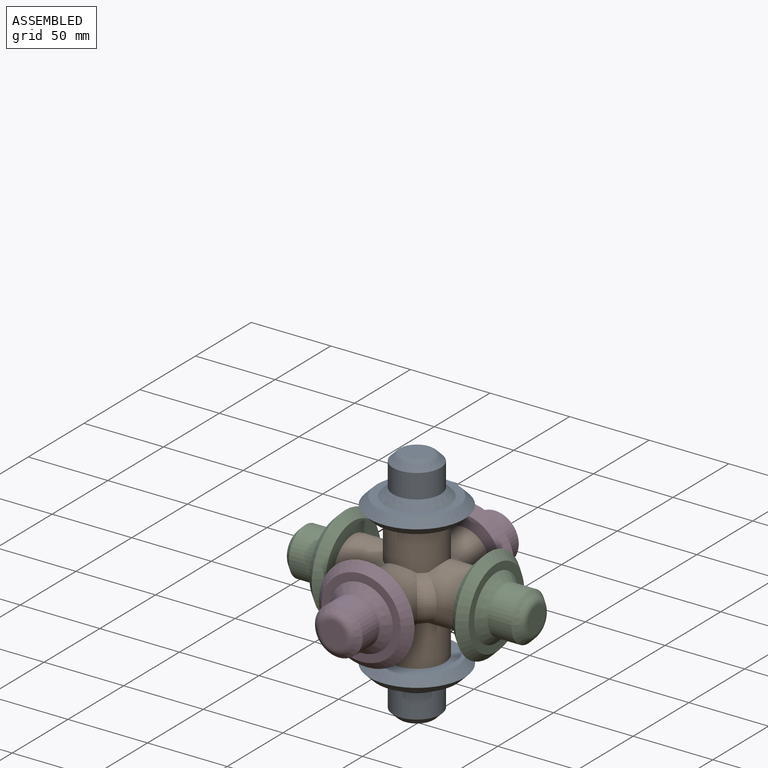
[diagram: assembled view]
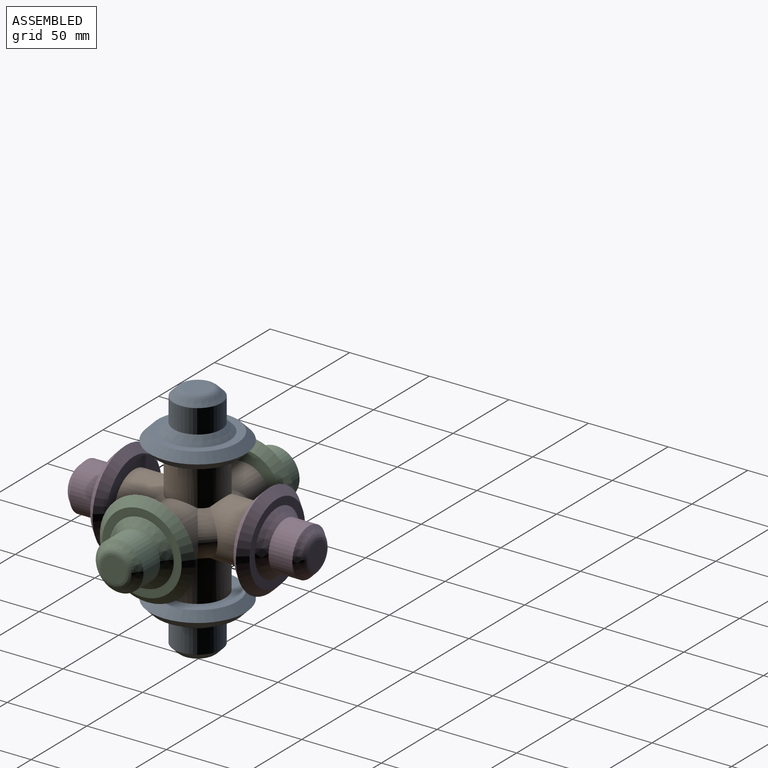
[diagram: assembled view, second angle]
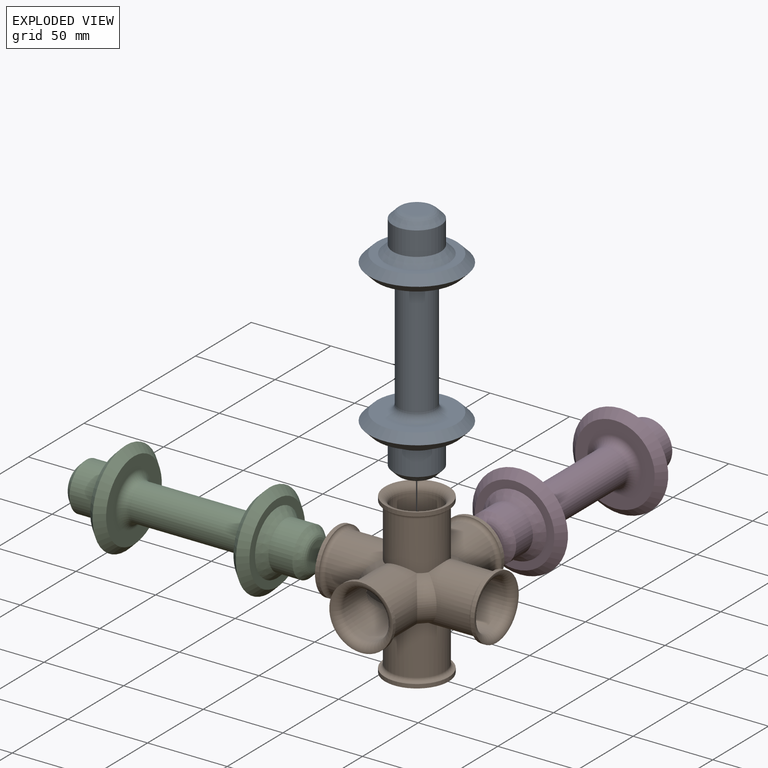
[diagram: exploded view]
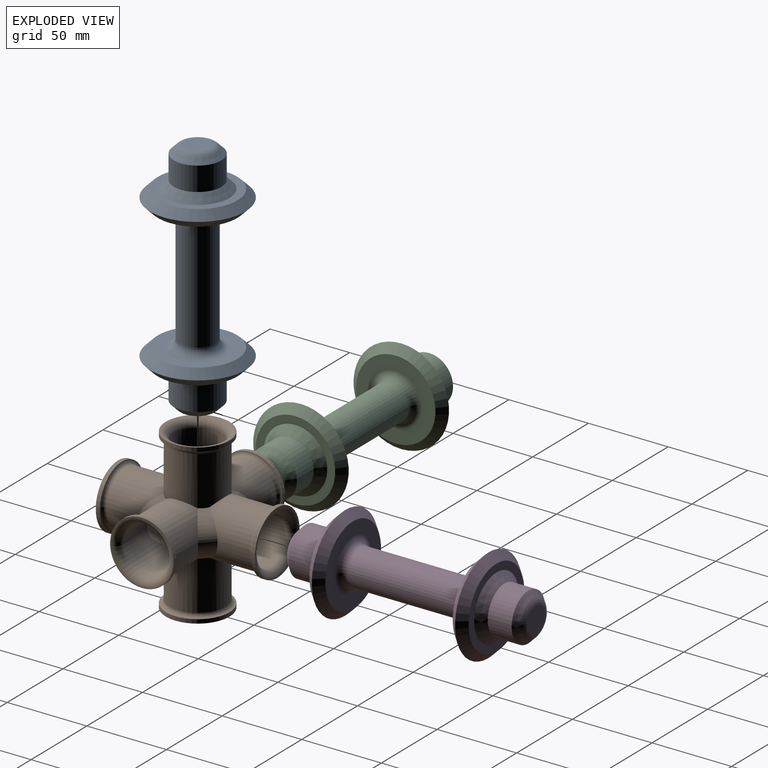
[diagram: exploded view, second angle]
ASSEMBLY  parts=4 mates=2
PART A: 21 faces, bbox 150x60x60 mm
  f0: plane 15.86x15.86mm, normal (1,0,0), area 197.5mm2, adj f20
  f1: cylinder r=15mm len=30mm, axis (1,0,0), area 1413.7mm2, adj f11,f15
  f2: plane 50x50mm, normal (1,0,0), area 706.9mm2, adj f11,f14
  f3: plane 50x50mm, normal (-1,0,0), area 1117.7mm2, adj f4,f13
  f4: torus R=16.41mm, axis (1,0,0), area 652.6mm2, adj f3,f5
  f5: cylinder r=11.41mm len=70mm, axis (1,0,0), area 5017.4mm2, adj f4,f10
  f6: plane 15.86x15.86mm, normal (-1,0,0), area 197.5mm2, adj f19
  f7: cylinder r=15mm len=30mm, axis (-1,0,0), area 1413.7mm2, adj f12,f18
  f8: plane 50x50mm, normal (-1,0,0), area 706.9mm2, adj f12,f17
  f9: plane 50x50mm, normal (1,0,0), area 1117.7mm2, adj f10,f16
  f10: torus R=16.41mm, axis (-1,0,0), area 652.6mm2, adj f5,f9
  f11: cone r=15mm half-angle=45deg, axis (-1,0,0), area 777.5mm2, adj f1,f2
  f12: cone r=20mm half-angle=45deg, axis (1,0,0), area 777.5mm2, adj f7,f8
  f13: cone r=30mm half-angle=45deg, axis (1,0,0), area 1221.8mm2, adj f3,f14
  f14: cone r=25mm half-angle=45deg, axis (-1,0,0), area 1221.8mm2, adj f2,f13
  f15: cone r=10mm half-angle=45deg, axis (-1,0,0), area 415.7mm2, adj f1,f20
  f16: cone r=25mm half-angle=45deg, axis (-1,0,0), area 1221.8mm2, adj f9,f17
  f17: cone r=30mm half-angle=45deg, axis (1,0,0), area 1221.8mm2, adj f8,f16
  f18: cone r=15mm half-angle=45deg, axis (1,0,0), area 415.7mm2, adj f7,f19
  f19: torus R=7.93mm, axis (1,0,0), area 241.6mm2, adj f6,f18
  f20: torus R=7.93mm, axis (-1,0,0), area 241.6mm2, adj f0,f15
PART B: 38 faces, bbox 105x105x105 mm
  f0: cylinder r=15mm len=32.33mm, axis (0,0,1), area 3027.4mm2, adj f2,f3,f4,f5,f6,f7,f8,f9
  f1: cylinder r=15mm len=32.33mm, axis (0,0,1), area 2968.1mm2, adj f2,f3,f4,f5,f6,f7,f8,f9
  f2: cylinder r=15mm len=32.33mm, axis (0,-1,0), area 2593.1mm2, adj f0,f1,f6,f9,f13
  f3: cylinder r=15mm len=32.33mm, axis (0,-1,0), area 2593.1mm2, adj f0,f1,f7,f8,f12
  f4: cylinder r=15mm len=32.33mm, axis (1,0,0), area 2593.1mm2, adj f0,f1,f7,f9,f11
  f5: cylinder r=15mm len=32.33mm, axis (1,0,0), area 2573.4mm2, adj f0,f1,f6,f8,f10
  f6: bspline ~25.34x15.62mm, area 381.8mm2, adj f0,f1,f2,f5
  f7: bspline ~25.34x15.62mm, area 381.8mm2, adj f0,f1,f3,f4
  f8: bspline ~25.34x15.62mm, area 381.8mm2, adj f0,f1,f3,f5
  f9: bspline ~25.34x15.62mm, area 381.8mm2, adj f0,f1,f2,f4
  f10: torus R=20mm, axis (1,0,0), area 829.9mm2, adj f5,f17
  f11: torus R=20mm, axis (1,0,0), area 829.9mm2, adj f4,f16
  f12: torus R=20mm, axis (0,-1,0), area 829.9mm2, adj f3,f19
  f13: torus R=20mm, axis (0,-1,0), area 829.9mm2, adj f2,f20
  f14: torus R=20mm, axis (0,0,1), area 829.9mm2, adj f1,f37
  f15: torus R=20mm, axis (0,0,1), area 829.9mm2, adj f0,f18
  f16: cylinder r=20mm len=40mm, axis (1,0,0), area 314.2mm2, adj f11,f32
  f17: cylinder r=20mm len=40mm, axis (1,0,0), area 314.2mm2, adj f10,f31
  f18: cylinder r=20mm len=40mm, axis (0,0,1), area 314.2mm2, adj f15,f36
  f19: cylinder r=20mm len=40mm, axis (0,-1,0), area 314.2mm2, adj f12,f33
  f20: cylinder r=20mm len=40mm, axis (0,-1,0), area 314.2mm2, adj f13,f34
  f21: cylinder r=17.5mm len=35mm, axis (0,0,1), area 3202.6mm2, adj f23,f24,f25,f26,f27,f28,f29,f30
  f22: cylinder r=17.5mm len=35mm, axis (0,0,1), area 3235.2mm2, adj f23,f24,f25,f26,f27,f28,f29,f30
  f23: cylinder r=17.5mm len=35mm, axis (0,-1,0), area 2875mm2, adj f21,f22,f27,f30,f34
  f24: cylinder r=17.5mm len=35mm, axis (0,-1,0), area 2875mm2, adj f21,f22,f28,f29,f33
  f25: cylinder r=17.5mm len=35mm, axis (1,0,0), area 2875mm2, adj f21,f22,f28,f30,f32
  f26: cylinder r=17.5mm len=35mm, axis (1,0,0), area 2841.6mm2, adj f21,f22,f27,f29,f31
  f27: offset ~31.82x21.94mm, area 357.5mm2, adj f21,f22,f23,f26
  f28: offset ~31.82x21.94mm, area 357.5mm2, adj f21,f22,f24,f25
  f29: offset ~31.82x21.94mm, area 357.5mm2, adj f21,f22,f24,f26
  f30: offset ~31.82x21.94mm, area 357.5mm2, adj f21,f22,f23,f25
  f31: torus R=20mm, axis (1,0,0), area 454.2mm2, adj f17,f26
  f32: torus R=20mm, axis (1,0,0), area 454.2mm2, adj f16,f25
  f33: torus R=20mm, axis (0,-1,0), area 454.2mm2, adj f19,f24
  f34: torus R=20mm, axis (0,-1,0), area 454.2mm2, adj f20,f23
  f35: torus R=20mm, axis (0,0,1), area 454.2mm2, adj f22,f37
  f36: torus R=20mm, axis (0,0,1), area 454.2mm2, adj f18,f21
  f37: cylinder r=20mm len=40mm, axis (0,0,-1), area 314.2mm2, adj f14,f35
PART C: same geometry as A
PART D: same geometry as A
PLACE A rot(axis=(0,1,0),90deg) t=(-0.38,-0.65,-0.02)mm
PLACE B t=(-0.38,-0.65,-0.02)mm
PLACE C t=(-0.38,-0.65,-0.02)mm
PLACE D rot(axis=(0,0,-1),90deg) t=(-0.38,-0.65,-0.02)mm
MATE fastened B.f2 <-> D.f1  axis (0,-1,0) through (-0.38,-45.65,-0.02)mm
MATE fastened B.f0 <-> A.f1  axis (0,0,1) through (-0.38,-0.65,44.98)mm
